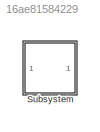
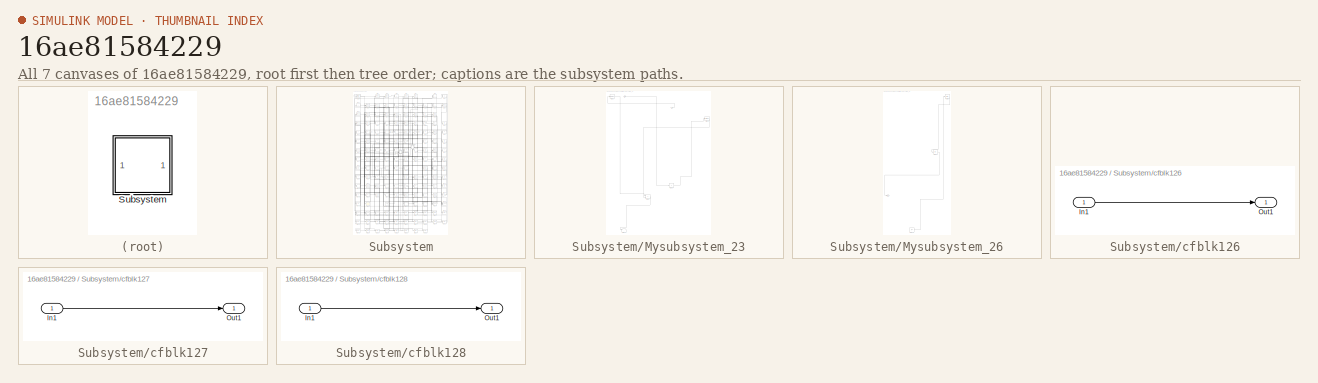
[diagram: thumbnail index - all 7 canvases of the model, root first then tree order]
MODEL slx_16ae81584229
KIND model
CONFIG AbsTol = auto
CONFIG EnableMultiTasking = off
CONFIG FixedStep = auto
CONFIG MaxStep = auto
CONFIG MinStep = auto
CONFIG RelTol = 1e-3
CONFIG SampleTimeConstraint = Unconstrained
CONFIG SolverName = VariableStepAuto
CONFIG StartTime = 0.0
CONFIG StopTime = 10.0
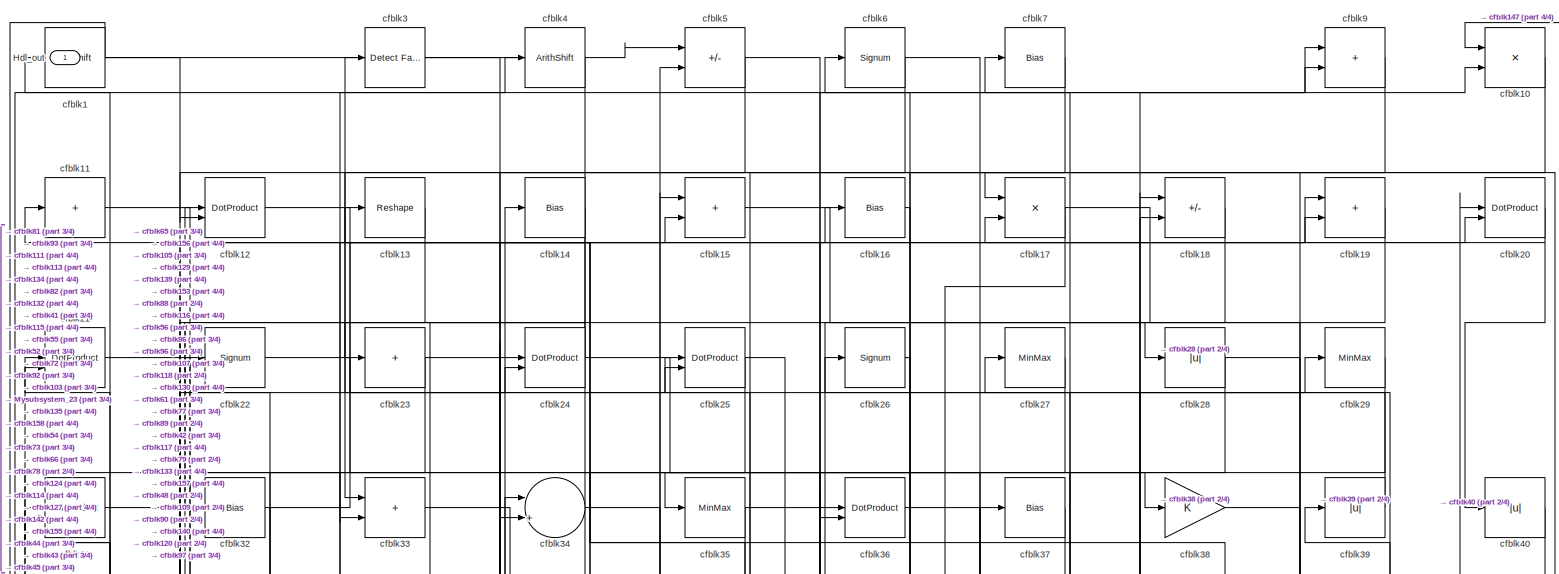
[diagram: Subsystem - part 1/4, full width, top band]
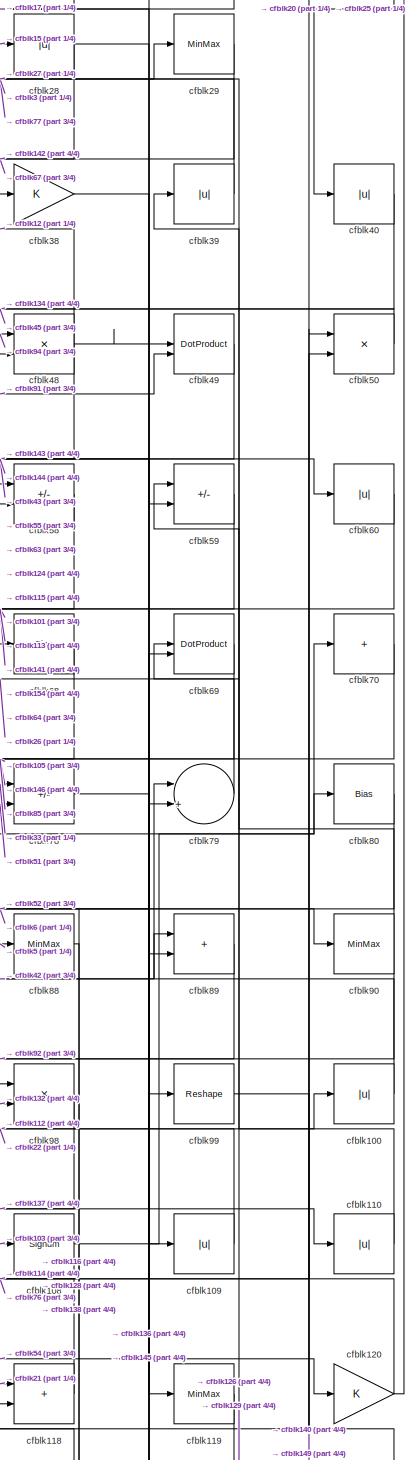
[diagram: Subsystem - part 2/4, middle right region]
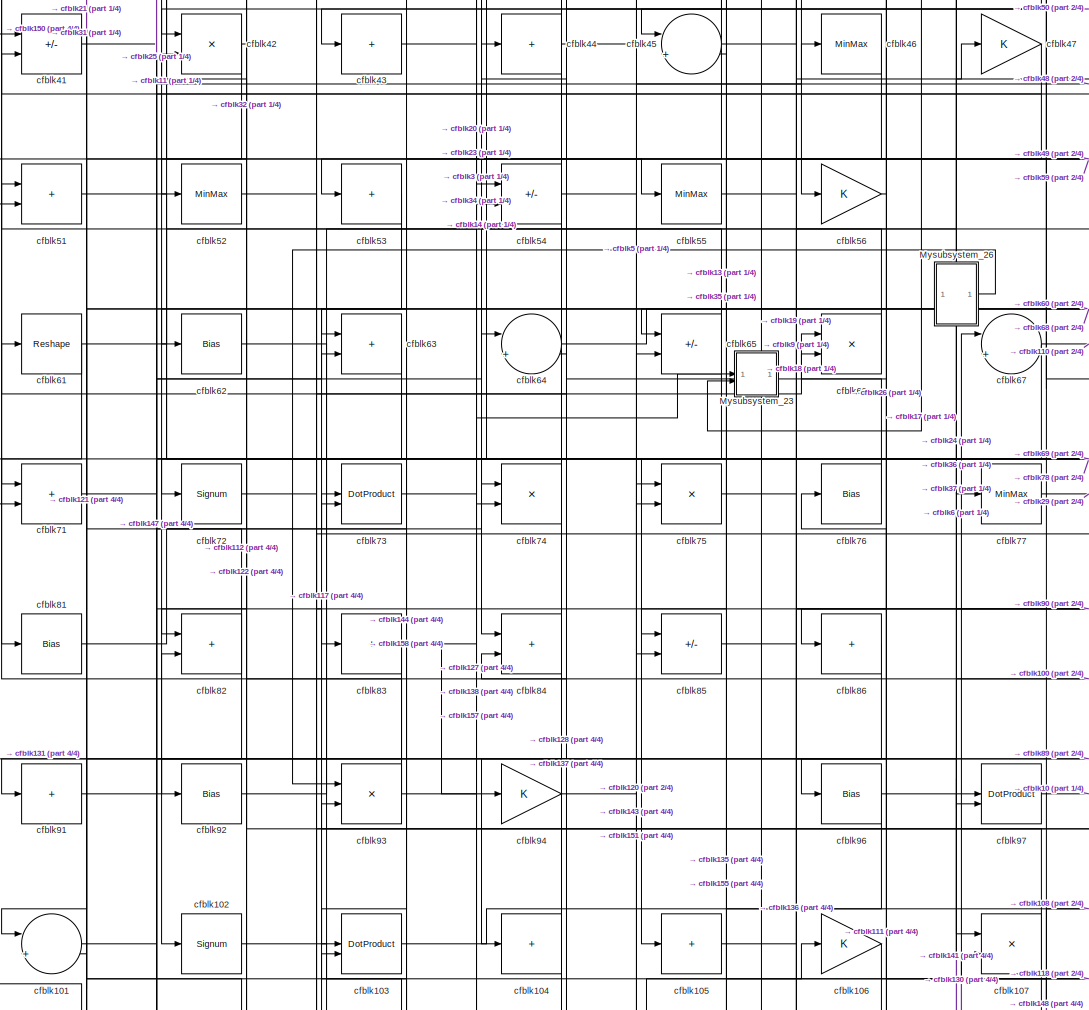
[diagram: Subsystem - part 3/4, central region]
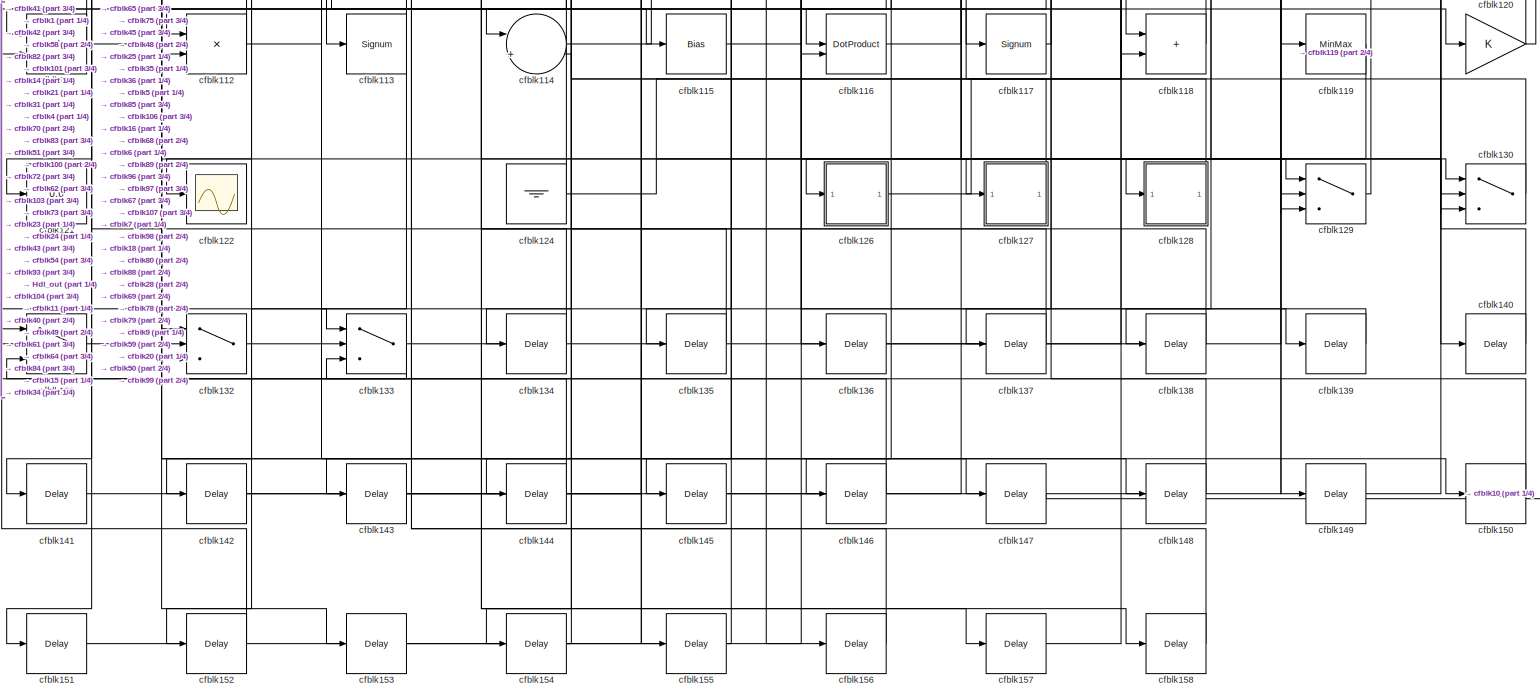
[diagram: Subsystem - part 4/4, full width, bottom band]
BLOCK [SubSystem] Subsystem
BLOCK [Outport] Subsystem/Hdl_out
  OutDataTypeStr = uint8
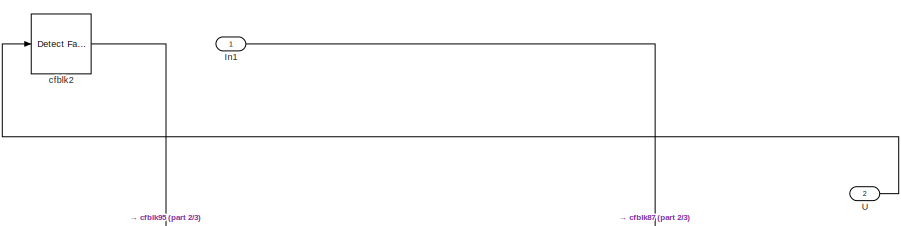
[diagram: Subsystem/Mysubsystem_23 - part 1/3, top center region]
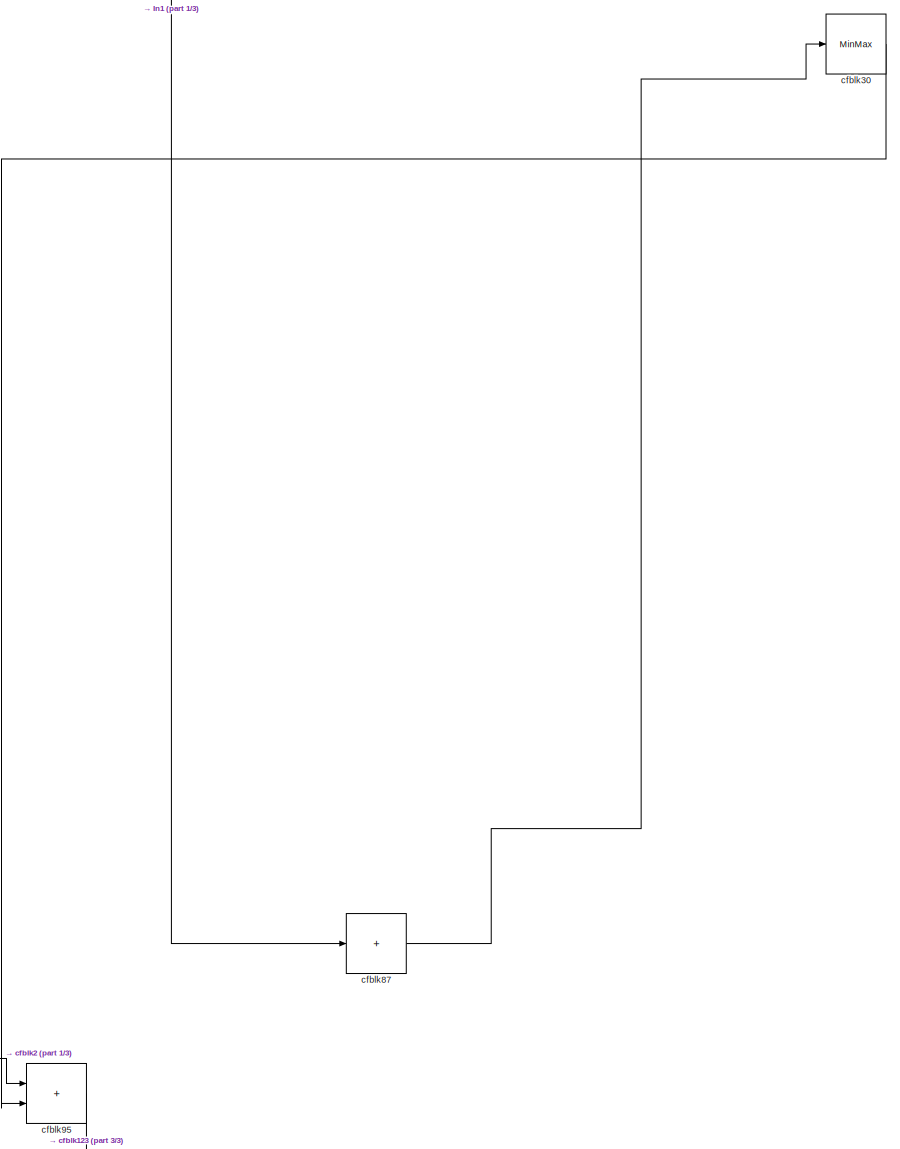
[diagram: Subsystem/Mysubsystem_23 - part 2/3, middle right region]
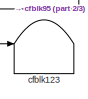
[diagram: Subsystem/Mysubsystem_23 - part 3/3, bottom left region]
BLOCK [SubSystem] Subsystem/Mysubsystem_23
  RTWFcnName = Mysubsystem_23
  RTWFcnNameOpts = User specified
  RTWFileNameOpts = Use function name
  RTWSystemCode = Reusable function
  TreatAsAtomicUnit = on
BLOCK [Inport] Subsystem/Mysubsystem_23/In1
BLOCK [Inport] Subsystem/Mysubsystem_23/U
  Port = 2
BLOCK [Terminator] Subsystem/Mysubsystem_23/cfblk123
BLOCK [Reference] Subsystem/Mysubsystem_23/cfblk2  REF=hdlsllib/Logic and Bit
Operations/Detect Fall
Nonpositive
  SourceBlock = hdlsllib/Logic and Bit\nOperations/Detect Fall\nNonpositive
  SourceType = Detect Fall Nonpositive
BLOCK [MinMax] Subsystem/Mysubsystem_23/cfblk30
BLOCK [Sum] Subsystem/Mysubsystem_23/cfblk87
  IconShape = rectangular
  Inputs = +
BLOCK [Sum] Subsystem/Mysubsystem_23/cfblk95
  IconShape = rectangular
BLOCK [SubSystem] Subsystem/Mysubsystem_26
  RTWFcnName = Mysubsystem_26
  RTWFcnNameOpts = User specified
  RTWFileNameOpts = Use function name
  RTWSystemCode = Reusable function
  TreatAsAtomicUnit = on
BLOCK [Outport] Subsystem/Mysubsystem_26/Out1
BLOCK [Ground] Subsystem/Mysubsystem_26/cfblk125
BLOCK [Abs] Subsystem/Mysubsystem_26/cfblk57
  SaturateOnIntegerOverflow = off
BLOCK [Bias] Subsystem/Mysubsystem_26/cfblk8
  Bias = 0.0
  SaturateOnIntegerOverflow = off
BLOCK [Reference] Subsystem/cfblk1  REF=hdlsllib/Logic and Bit
Operations/Bit Shift
  SourceBlock = hdlsllib/Logic and Bit\nOperations/Bit Shift
  SourceType = Bit Shift
BLOCK [Product] Subsystem/cfblk10
  Inputs = */
  OutDataTypeStr = uint8
  RndMeth = Zero
  SaturateOnIntegerOverflow = on
BLOCK [Abs] Subsystem/cfblk100
  OutDataTypeStr = uint8
  SaturateOnIntegerOverflow = off
BLOCK [Sum] Subsystem/cfblk101
  Inputs = |++
  OutDataTypeStr = uint8
BLOCK [Signum] Subsystem/cfblk102
BLOCK [DotProduct] Subsystem/cfblk103
  OutDataTypeStr = uint8
BLOCK [Sum] Subsystem/cfblk104
  IconShape = rectangular
  Inputs = +
  OutDataTypeStr = uint8
BLOCK [Sum] Subsystem/cfblk105
  IconShape = rectangular
  Inputs = +
  OutDataTypeStr = uint8
BLOCK [Gain] Subsystem/cfblk106
  OutDataTypeStr = uint8
BLOCK [Product] Subsystem/cfblk107
  Inputs = */
  OutDataTypeStr = uint8
  RndMeth = Zero
  SaturateOnIntegerOverflow = on
BLOCK [Signum] Subsystem/cfblk108
BLOCK [Abs] Subsystem/cfblk109
  OutDataTypeStr = uint8
  SaturateOnIntegerOverflow = off
BLOCK [Sum] Subsystem/cfblk11
  IconShape = rectangular
  Inputs = +
  OutDataTypeStr = uint8
BLOCK [Abs] Subsystem/cfblk110
  OutDataTypeStr = uint8
  SaturateOnIntegerOverflow = off
BLOCK [Sum] Subsystem/cfblk111
  IconShape = rectangular
  Inputs = +-
  OutDataTypeStr = uint8
BLOCK [Product] Subsystem/cfblk112
  Inputs = */
  OutDataTypeStr = uint8
  RndMeth = Zero
  SaturateOnIntegerOverflow = on
BLOCK [Signum] Subsystem/cfblk113
BLOCK [Sum] Subsystem/cfblk114
  Inputs = |++
  OutDataTypeStr = uint8
BLOCK [Bias] Subsystem/cfblk115
  Bias = 0.0
  SaturateOnIntegerOverflow = off
BLOCK [DotProduct] Subsystem/cfblk116
  OutDataTypeStr = uint8
BLOCK [Signum] Subsystem/cfblk117
BLOCK [Sum] Subsystem/cfblk118
  IconShape = rectangular
  OutDataTypeStr = uint8
BLOCK [MinMax] Subsystem/cfblk119
  OutDataTypeStr = uint8
BLOCK [DotProduct] Subsystem/cfblk12
  OutDataTypeStr = uint8
BLOCK [Gain] Subsystem/cfblk120
  OutDataTypeStr = uint8
BLOCK [Display] Subsystem/cfblk121
  Decimation = 1
BLOCK [Scope] Subsystem/cfblk122
  Floating = off
  NumInputPorts = 1
  ScopeSpecificationString = Simulink.scopes.TimeScopeBlockCfg('CurrentConfiguration', extmgr.ConfigurationSet(extmgr.Configuration('Core','General UI',true),extmgr.Configuration('Core','Source UI',true),extmgr.Configuration('Sources','WiredSimulink',true,'DataLoggingSaveFormat','Array','DataLoggingLimitDataPoints',true,'DataLoggingDecimation','1'),extmgr.Configuration('Visuals','Time Domain',true,'DisplayPropertyDefaults',st...<+829ch>
BLOCK [Ground] Subsystem/cfblk124
BLOCK [SubSystem] Subsystem/cfblk126
  LibrarySourceBlock = hdlsllib/Ports &\nSubsystems/Subsystem
BLOCK [Inport] Subsystem/cfblk126/In1
BLOCK [Outport] Subsystem/cfblk126/Out1
BLOCK [SubSystem] Subsystem/cfblk127
  LibrarySourceBlock = hdlsllib/Ports &\nSubsystems/Subsystem
BLOCK [Inport] Subsystem/cfblk127/In1
BLOCK [Outport] Subsystem/cfblk127/Out1
BLOCK [SubSystem] Subsystem/cfblk128
  LibrarySourceBlock = hdlsllib/Ports &\nSubsystems/Subsystem
BLOCK [Inport] Subsystem/cfblk128/In1
BLOCK [Outport] Subsystem/cfblk128/Out1
BLOCK [Switch] Subsystem/cfblk129
  InputSameDT = off
  OutDataTypeStr = uint8
  SaturateOnIntegerOverflow = off
BLOCK [Reshape] Subsystem/cfblk13
BLOCK [Switch] Subsystem/cfblk130
  InputSameDT = off
  OutDataTypeStr = uint8
  SaturateOnIntegerOverflow = off
BLOCK [Switch] Subsystem/cfblk131
  InputSameDT = off
  OutDataTypeStr = uint8
  SaturateOnIntegerOverflow = off
BLOCK [Switch] Subsystem/cfblk132
  InputSameDT = off
  OutDataTypeStr = uint8
  SaturateOnIntegerOverflow = off
BLOCK [Switch] Subsystem/cfblk133
  InputSameDT = off
  OutDataTypeStr = uint8
  SaturateOnIntegerOverflow = off
BLOCK [Delay] Subsystem/cfblk134
  InputPortMap = u0
  SampleTime = 1
BLOCK [Delay] Subsystem/cfblk135
  InputPortMap = u0
  SampleTime = 1
BLOCK [Delay] Subsystem/cfblk136
  InputPortMap = u0
  SampleTime = 1
BLOCK [Delay] Subsystem/cfblk137
  InputPortMap = u0
  SampleTime = 1
BLOCK [Delay] Subsystem/cfblk138
  InputPortMap = u0
  SampleTime = 1
BLOCK [Delay] Subsystem/cfblk139
  InputPortMap = u0
  SampleTime = 1
BLOCK [Bias] Subsystem/cfblk14
  Bias = 0.0
  SaturateOnIntegerOverflow = off
BLOCK [Delay] Subsystem/cfblk140
  InputPortMap = u0
  SampleTime = 1
BLOCK [Delay] Subsystem/cfblk141
  InputPortMap = u0
  SampleTime = 1
BLOCK [Delay] Subsystem/cfblk142
  InputPortMap = u0
  SampleTime = 1
BLOCK [Delay] Subsystem/cfblk143
  InputPortMap = u0
  SampleTime = 1
BLOCK [Delay] Subsystem/cfblk144
  InputPortMap = u0
  SampleTime = 1
BLOCK [Delay] Subsystem/cfblk145
  InputPortMap = u0
  SampleTime = 1
BLOCK [Delay] Subsystem/cfblk146
  InputPortMap = u0
  SampleTime = 1
BLOCK [Delay] Subsystem/cfblk147
  InputPortMap = u0
  SampleTime = 1
BLOCK [Delay] Subsystem/cfblk148
  InputPortMap = u0
  SampleTime = 1
BLOCK [Delay] Subsystem/cfblk149
  InputPortMap = u0
  SampleTime = 1
BLOCK [Sum] Subsystem/cfblk15
  IconShape = rectangular
  OutDataTypeStr = uint8
BLOCK [Delay] Subsystem/cfblk150
  InputPortMap = u0
  SampleTime = 1
BLOCK [Delay] Subsystem/cfblk151
  InputPortMap = u0
  SampleTime = 1
BLOCK [Delay] Subsystem/cfblk152
  InputPortMap = u0
  SampleTime = 1
BLOCK [Delay] Subsystem/cfblk153
  InputPortMap = u0
  SampleTime = 1
BLOCK [Delay] Subsystem/cfblk154
  InputPortMap = u0
  SampleTime = 1
BLOCK [Delay] Subsystem/cfblk155
  InputPortMap = u0
  SampleTime = 1
BLOCK [Delay] Subsystem/cfblk156
  InputPortMap = u0
  SampleTime = 1
BLOCK [Delay] Subsystem/cfblk157
  InputPortMap = u0
  SampleTime = 1
BLOCK [Delay] Subsystem/cfblk158
  InputPortMap = u0
  SampleTime = 1
BLOCK [Bias] Subsystem/cfblk16
  Bias = 0.0
  SaturateOnIntegerOverflow = off
BLOCK [Product] Subsystem/cfblk17
  Inputs = */
  OutDataTypeStr = uint8
  RndMeth = Zero
  SaturateOnIntegerOverflow = on
BLOCK [Sum] Subsystem/cfblk18
  IconShape = rectangular
  Inputs = +-
  OutDataTypeStr = uint8
BLOCK [Sum] Subsystem/cfblk19
  IconShape = rectangular
  OutDataTypeStr = uint8
BLOCK [DotProduct] Subsystem/cfblk20
  OutDataTypeStr = uint8
BLOCK [DotProduct] Subsystem/cfblk21
  OutDataTypeStr = uint8
BLOCK [Signum] Subsystem/cfblk22
BLOCK [Sum] Subsystem/cfblk23
  IconShape = rectangular
  Inputs = +
  OutDataTypeStr = uint8
BLOCK [DotProduct] Subsystem/cfblk24
  OutDataTypeStr = uint8
BLOCK [DotProduct] Subsystem/cfblk25
  OutDataTypeStr = uint8
BLOCK [Signum] Subsystem/cfblk26
BLOCK [MinMax] Subsystem/cfblk27
  OutDataTypeStr = uint8
BLOCK [Abs] Subsystem/cfblk28
  OutDataTypeStr = uint8
  SaturateOnIntegerOverflow = off
BLOCK [MinMax] Subsystem/cfblk29
  OutDataTypeStr = uint8
BLOCK [Reference] Subsystem/cfblk3  REF=hdlsllib/Logic and Bit
Operations/Detect Fall
Negative
  SourceBlock = hdlsllib/Logic and Bit\nOperations/Detect Fall\nNegative
  SourceType = Detect Fall Negative
BLOCK [DotProduct] Subsystem/cfblk31
  OutDataTypeStr = uint8
BLOCK [Bias] Subsystem/cfblk32
  Bias = 0.0
  SaturateOnIntegerOverflow = off
BLOCK [Sum] Subsystem/cfblk33
  IconShape = rectangular
  OutDataTypeStr = uint8
BLOCK [Sum] Subsystem/cfblk34
  Inputs = |++
  OutDataTypeStr = uint8
BLOCK [MinMax] Subsystem/cfblk35
  OutDataTypeStr = uint8
BLOCK [DotProduct] Subsystem/cfblk36
  OutDataTypeStr = uint8
BLOCK [Bias] Subsystem/cfblk37
  Bias = 0.0
  SaturateOnIntegerOverflow = off
BLOCK [Gain] Subsystem/cfblk38
  OutDataTypeStr = uint8
BLOCK [Abs] Subsystem/cfblk39
  OutDataTypeStr = uint8
  SaturateOnIntegerOverflow = off
BLOCK [ArithShift] Subsystem/cfblk4
  BitShiftNumber = 8
  InputPortMap = u0
BLOCK [Abs] Subsystem/cfblk40
  OutDataTypeStr = uint8
  SaturateOnIntegerOverflow = off
BLOCK [Sum] Subsystem/cfblk41
  IconShape = rectangular
  Inputs = +-
  OutDataTypeStr = uint8
BLOCK [Product] Subsystem/cfblk42
  Inputs = */
  OutDataTypeStr = uint8
  RndMeth = Zero
  SaturateOnIntegerOverflow = on
BLOCK [Sum] Subsystem/cfblk43
  IconShape = rectangular
  Inputs = +
  OutDataTypeStr = uint8
BLOCK [Sum] Subsystem/cfblk44
  IconShape = rectangular
  Inputs = +
  OutDataTypeStr = uint8
BLOCK [Sum] Subsystem/cfblk45
  Inputs = |++
  OutDataTypeStr = uint8
BLOCK [MinMax] Subsystem/cfblk46
  OutDataTypeStr = uint8
BLOCK [Gain] Subsystem/cfblk47
  OutDataTypeStr = uint8
BLOCK [Product] Subsystem/cfblk48
  Inputs = */
  OutDataTypeStr = uint8
  RndMeth = Zero
  SaturateOnIntegerOverflow = on
BLOCK [DotProduct] Subsystem/cfblk49
  OutDataTypeStr = uint8
BLOCK [Sum] Subsystem/cfblk5
  IconShape = rectangular
  Inputs = +-
  OutDataTypeStr = uint8
BLOCK [Product] Subsystem/cfblk50
  Inputs = */
  OutDataTypeStr = uint8
  RndMeth = Zero
  SaturateOnIntegerOverflow = on
BLOCK [Sum] Subsystem/cfblk51
  IconShape = rectangular
  OutDataTypeStr = uint8
BLOCK [MinMax] Subsystem/cfblk52
  OutDataTypeStr = uint8
BLOCK [Sum] Subsystem/cfblk53
  IconShape = rectangular
  Inputs = +
  OutDataTypeStr = uint8
BLOCK [Sum] Subsystem/cfblk54
  IconShape = rectangular
  Inputs = +-
  OutDataTypeStr = uint8
BLOCK [MinMax] Subsystem/cfblk55
  OutDataTypeStr = uint8
BLOCK [Gain] Subsystem/cfblk56
  OutDataTypeStr = uint8
BLOCK [Sum] Subsystem/cfblk58
  IconShape = rectangular
  Inputs = +-
  OutDataTypeStr = uint8
BLOCK [Sum] Subsystem/cfblk59
  IconShape = rectangular
  Inputs = +-
  OutDataTypeStr = uint8
BLOCK [Signum] Subsystem/cfblk6
BLOCK [Abs] Subsystem/cfblk60
  OutDataTypeStr = uint8
  SaturateOnIntegerOverflow = off
BLOCK [Reshape] Subsystem/cfblk61
BLOCK [Bias] Subsystem/cfblk62
  Bias = 0.0
  SaturateOnIntegerOverflow = off
BLOCK [Sum] Subsystem/cfblk63
  IconShape = rectangular
  OutDataTypeStr = uint8
BLOCK [Sum] Subsystem/cfblk64
  Inputs = |++
  OutDataTypeStr = uint8
BLOCK [Sum] Subsystem/cfblk65
  IconShape = rectangular
  Inputs = +-
  OutDataTypeStr = uint8
BLOCK [Product] Subsystem/cfblk66
  Inputs = */
  OutDataTypeStr = uint8
  RndMeth = Zero
  SaturateOnIntegerOverflow = on
BLOCK [Sum] Subsystem/cfblk67
  Inputs = |++
  OutDataTypeStr = uint8
BLOCK [Bias] Subsystem/cfblk68
  Bias = 0.0
  SaturateOnIntegerOverflow = off
BLOCK [DotProduct] Subsystem/cfblk69
  OutDataTypeStr = uint8
BLOCK [Bias] Subsystem/cfblk7
  Bias = 0.0
  SaturateOnIntegerOverflow = off
BLOCK [Sum] Subsystem/cfblk70
  IconShape = rectangular
  Inputs = +
  OutDataTypeStr = uint8
BLOCK [Sum] Subsystem/cfblk71
  IconShape = rectangular
  OutDataTypeStr = uint8
BLOCK [Signum] Subsystem/cfblk72
BLOCK [DotProduct] Subsystem/cfblk73
  OutDataTypeStr = uint8
BLOCK [Product] Subsystem/cfblk74
  Inputs = */
  OutDataTypeStr = uint8
  RndMeth = Zero
  SaturateOnIntegerOverflow = on
BLOCK [Product] Subsystem/cfblk75
  Inputs = */
  OutDataTypeStr = uint8
  RndMeth = Zero
  SaturateOnIntegerOverflow = on
BLOCK [Bias] Subsystem/cfblk76
  Bias = 0.0
  SaturateOnIntegerOverflow = off
BLOCK [MinMax] Subsystem/cfblk77
  OutDataTypeStr = uint8
BLOCK [Sum] Subsystem/cfblk78
  IconShape = rectangular
  Inputs = +-
  OutDataTypeStr = uint8
BLOCK [Sum] Subsystem/cfblk79
  Inputs = |++
  OutDataTypeStr = uint8
BLOCK [Bias] Subsystem/cfblk80
  Bias = 0.0
  SaturateOnIntegerOverflow = off
BLOCK [Bias] Subsystem/cfblk81
  Bias = 0.0
  SaturateOnIntegerOverflow = off
BLOCK [Sum] Subsystem/cfblk82
  IconShape = rectangular
  OutDataTypeStr = uint8
BLOCK [Sum] Subsystem/cfblk83
  IconShape = rectangular
  Inputs = +
  OutDataTypeStr = uint8
BLOCK [Sum] Subsystem/cfblk84
  IconShape = rectangular
  OutDataTypeStr = uint8
BLOCK [Sum] Subsystem/cfblk85
  IconShape = rectangular
  Inputs = +-
  OutDataTypeStr = uint8
BLOCK [Sum] Subsystem/cfblk86
  IconShape = rectangular
  Inputs = +
  OutDataTypeStr = uint8
BLOCK [MinMax] Subsystem/cfblk88
  OutDataTypeStr = uint8
BLOCK [Sum] Subsystem/cfblk89
  IconShape = rectangular
  OutDataTypeStr = uint8
BLOCK [Sum] Subsystem/cfblk9
  IconShape = rectangular
  OutDataTypeStr = uint8
BLOCK [MinMax] Subsystem/cfblk90
  OutDataTypeStr = uint8
BLOCK [Sum] Subsystem/cfblk91
  IconShape = rectangular
  Inputs = +
  OutDataTypeStr = uint8
BLOCK [Bias] Subsystem/cfblk92
  Bias = 0.0
  SaturateOnIntegerOverflow = off
BLOCK [Product] Subsystem/cfblk93
  Inputs = */
  OutDataTypeStr = uint8
  RndMeth = Zero
  SaturateOnIntegerOverflow = on
BLOCK [Gain] Subsystem/cfblk94
  OutDataTypeStr = uint8
BLOCK [Bias] Subsystem/cfblk96
  Bias = 0.0
  SaturateOnIntegerOverflow = off
BLOCK [DotProduct] Subsystem/cfblk97
  OutDataTypeStr = uint8
BLOCK [Product] Subsystem/cfblk98
  Inputs = */
  OutDataTypeStr = uint8
  RndMeth = Zero
  SaturateOnIntegerOverflow = on
BLOCK [Reshape] Subsystem/cfblk99
LINE Subsystem/Mysubsystem_23/In1:1 -> Subsystem/Mysubsystem_23/cfblk87:1
LINE Subsystem/Mysubsystem_23/U:1 -> Subsystem/Mysubsystem_23/cfblk2:1
LINE Subsystem/Mysubsystem_23/cfblk2:1 -> Subsystem/Mysubsystem_23/cfblk95:1
LINE Subsystem/Mysubsystem_23/cfblk30:1 -> Subsystem/Mysubsystem_23/cfblk95:2
LINE Subsystem/Mysubsystem_23/cfblk87:1 -> Subsystem/Mysubsystem_23/cfblk30:1
LINE Subsystem/Mysubsystem_23/cfblk95:1 -> Subsystem/Mysubsystem_23/cfblk123:1
LINE Subsystem/Mysubsystem_26/cfblk125:1 -> Subsystem/Mysubsystem_26/cfblk8:1
LINE Subsystem/Mysubsystem_26/cfblk57:1 -> Subsystem/Mysubsystem_26/Out1:1
LINE Subsystem/Mysubsystem_26/cfblk8:1 -> Subsystem/Mysubsystem_26/cfblk57:1
LINE Subsystem/Mysubsystem_26:1 -> Subsystem/cfblk93:1
NET Subsystem/cfblk100:1 -> Subsystem/cfblk42:2, Subsystem/cfblk79:1
NET Subsystem/cfblk101:1 -> Subsystem/cfblk148:1, Subsystem/cfblk46:1
LINE Subsystem/cfblk102:1 -> Subsystem/cfblk106:1
LINE Subsystem/cfblk103:1 -> Subsystem/cfblk108:1
LINE Subsystem/cfblk104:1 -> Subsystem/cfblk151:1
NET Subsystem/cfblk105:1 -> Subsystem/cfblk47:1, Subsystem/cfblk9:2
LINE Subsystem/cfblk106:1 -> Subsystem/cfblk111:2
NET Subsystem/cfblk107:1 -> Subsystem/cfblk112:1, Subsystem/cfblk66:2, Subsystem/cfblk93:2
LINE Subsystem/cfblk108:1 -> Subsystem/cfblk70:1
LINE Subsystem/cfblk109:1 -> Subsystem/cfblk22:1
LINE Subsystem/cfblk10:1 -> Subsystem/cfblk65:1
NET Subsystem/cfblk110:1 -> Subsystem/cfblk39:1, Subsystem/cfblk69:1
NET Subsystem/cfblk111:1 -> Subsystem/cfblk15:2, Subsystem/cfblk4:1
NET Subsystem/cfblk112:1 -> Subsystem/cfblk100:1, Subsystem/cfblk51:1
NET Subsystem/cfblk113:1 -> Subsystem/cfblk152:1, Subsystem/cfblk31:1
LINE Subsystem/cfblk114:1 -> Subsystem/cfblk50:2
LINE Subsystem/cfblk115:1 -> Subsystem/cfblk58:2
NET Subsystem/cfblk116:1 -> Subsystem/cfblk48:2, Subsystem/cfblk89:1
LINE Subsystem/cfblk117:1 -> Subsystem/cfblk7:1
LINE Subsystem/cfblk118:1 -> Subsystem/cfblk76:1
LINE Subsystem/cfblk119:1 -> Subsystem/cfblk126:1
LINE Subsystem/cfblk11:1 -> Subsystem/cfblk55:1
NET Subsystem/cfblk120:1 -> Subsystem/cfblk17:1, Subsystem/cfblk25:2
NET Subsystem/cfblk124:1 -> Subsystem/Hdl_out:1, Subsystem/cfblk129:2, Subsystem/cfblk58:1
LINE Subsystem/cfblk126/In1:1 -> Subsystem/cfblk126/Out1:1
LINE Subsystem/cfblk126:1 -> Subsystem/cfblk98:1
LINE Subsystem/cfblk127/In1:1 -> Subsystem/cfblk127/Out1:1
LINE Subsystem/cfblk127:1 -> Subsystem/cfblk11:1
LINE Subsystem/cfblk128/In1:1 -> Subsystem/cfblk128/Out1:1
NET Subsystem/cfblk128:1 -> Subsystem/cfblk61:1, Subsystem/cfblk64:2
LINE Subsystem/cfblk129:1 -> Subsystem/cfblk59:1
LINE Subsystem/cfblk12:1 -> Subsystem/cfblk38:1
LINE Subsystem/cfblk130:1 -> Subsystem/cfblk67:1
LINE Subsystem/cfblk131:1 -> Subsystem/cfblk73:1
LINE Subsystem/cfblk132:1 -> Subsystem/cfblk80:1
NET Subsystem/cfblk133:1 -> Subsystem/cfblk131:3, Subsystem/cfblk18:1
LINE Subsystem/cfblk134:1 -> Subsystem/cfblk1:1
LINE Subsystem/cfblk135:1 -> Subsystem/cfblk24:1
LINE Subsystem/cfblk136:1 -> Subsystem/cfblk69:2
LINE Subsystem/cfblk137:1 -> Subsystem/cfblk84:2
LINE Subsystem/cfblk138:1 -> Subsystem/cfblk54:1
LINE Subsystem/cfblk139:1 -> Subsystem/cfblk133:2
LINE Subsystem/cfblk13:1 -> Subsystem/cfblk72:1
LINE Subsystem/cfblk140:1 -> Subsystem/cfblk20:1
LINE Subsystem/cfblk141:1 -> Subsystem/cfblk97:1
LINE Subsystem/cfblk142:1 -> Subsystem/cfblk15:1
LINE Subsystem/cfblk143:1 -> Subsystem/cfblk65:2
LINE Subsystem/cfblk144:1 -> Subsystem/cfblk103:2
LINE Subsystem/cfblk145:1 -> Subsystem/cfblk79:2
LINE Subsystem/cfblk146:1 -> Subsystem/cfblk132:1
LINE Subsystem/cfblk147:1 -> Subsystem/cfblk10:1
LINE Subsystem/cfblk148:1 -> Subsystem/cfblk107:2
LINE Subsystem/cfblk149:1 -> Subsystem/cfblk50:1
NET Subsystem/cfblk14:1 -> Subsystem/cfblk132:3, Subsystem/cfblk32:1
LINE Subsystem/cfblk150:1 -> Subsystem/cfblk41:1
LINE Subsystem/cfblk151:1 -> Subsystem/cfblk75:1
LINE Subsystem/cfblk152:1 -> Subsystem/cfblk131:1
LINE Subsystem/cfblk153:1 -> Subsystem/cfblk36:1
LINE Subsystem/cfblk154:1 -> Subsystem/cfblk114:2
LINE Subsystem/cfblk155:1 -> Subsystem/cfblk45:2
LINE Subsystem/cfblk156:1 -> Subsystem/cfblk133:3
LINE Subsystem/cfblk157:1 -> Subsystem/cfblk18:2
LINE Subsystem/cfblk158:1 -> Subsystem/cfblk73:2
LINE Subsystem/cfblk15:1 -> Subsystem/cfblk28:1
LINE Subsystem/cfblk16:1 -> Subsystem/cfblk116:1
NET Subsystem/cfblk17:1 -> Subsystem/Mysubsystem_23:2, Subsystem/cfblk109:1
LINE Subsystem/cfblk18:1 -> Subsystem/cfblk56:1
LINE Subsystem/cfblk19:1 -> Subsystem/cfblk103:1
NET Subsystem/cfblk1:1 -> Subsystem/cfblk130:1, Subsystem/cfblk133:1, Subsystem/cfblk33:2
NET Subsystem/cfblk20:1 -> Subsystem/cfblk17:2, Subsystem/cfblk40:1
NET Subsystem/cfblk21:1 -> Subsystem/cfblk115:1, Subsystem/cfblk118:1
LINE Subsystem/cfblk22:1 -> Subsystem/cfblk24:2
NET Subsystem/cfblk23:1 -> Subsystem/cfblk158:1, Subsystem/cfblk81:1
NET Subsystem/cfblk24:1 -> Subsystem/cfblk23:1, Subsystem/cfblk36:2, Subsystem/cfblk77:1
NET Subsystem/cfblk25:1 -> Subsystem/cfblk114:1, Subsystem/cfblk156:1
LINE Subsystem/cfblk26:1 -> Subsystem/cfblk96:1
LINE Subsystem/cfblk27:1 -> Subsystem/cfblk35:1
NET Subsystem/cfblk28:1 -> Subsystem/cfblk119:1, Subsystem/cfblk142:1
LINE Subsystem/cfblk29:1 -> Subsystem/cfblk67:2
LINE Subsystem/cfblk31:1 -> Subsystem/cfblk153:1
NET Subsystem/cfblk32:1 -> Subsystem/cfblk16:1, Subsystem/cfblk52:1
LINE Subsystem/cfblk33:1 -> Subsystem/cfblk78:1
LINE Subsystem/cfblk34:1 -> Subsystem/cfblk155:1
NET Subsystem/cfblk35:1 -> Subsystem/cfblk129:1, Subsystem/cfblk43:1
LINE Subsystem/cfblk36:1 -> Subsystem/cfblk107:1
LINE Subsystem/cfblk37:1 -> Subsystem/cfblk42:1
LINE Subsystem/cfblk38:1 -> Subsystem/cfblk99:1
LINE Subsystem/cfblk39:1 -> Subsystem/cfblk3:1
LINE Subsystem/cfblk3:1 -> Subsystem/Mysubsystem_23:1
LINE Subsystem/cfblk40:1 -> Subsystem/cfblk134:1
LINE Subsystem/cfblk41:1 -> Subsystem/cfblk25:1
NET Subsystem/cfblk42:1 -> Subsystem/cfblk111:1, Subsystem/cfblk62:1
NET Subsystem/cfblk43:1 -> Subsystem/cfblk127:1, Subsystem/cfblk59:2
LINE Subsystem/cfblk44:1 -> Subsystem/cfblk5:2
NET Subsystem/cfblk45:1 -> Subsystem/cfblk13:1, Subsystem/cfblk19:1, Subsystem/cfblk51:2
LINE Subsystem/cfblk46:1 -> Subsystem/cfblk53:1
NET Subsystem/cfblk47:1 -> Subsystem/cfblk41:2, Subsystem/cfblk85:1
NET Subsystem/cfblk48:1 -> Subsystem/cfblk12:1, Subsystem/cfblk145:1, Subsystem/cfblk49:1
NET Subsystem/cfblk49:1 -> Subsystem/cfblk143:1, Subsystem/cfblk144:1, Subsystem/cfblk63:1
LINE Subsystem/cfblk4:1 -> Subsystem/cfblk5:1
LINE Subsystem/cfblk50:1 -> Subsystem/cfblk45:1
NET Subsystem/cfblk51:1 -> Subsystem/cfblk74:1, Subsystem/cfblk78:2
LINE Subsystem/cfblk52:1 -> Subsystem/cfblk90:1
LINE Subsystem/cfblk53:1 -> Subsystem/cfblk82:1
NET Subsystem/cfblk54:1 -> Subsystem/cfblk120:1, Subsystem/cfblk75:2
LINE Subsystem/cfblk55:1 -> Subsystem/cfblk60:1
LINE Subsystem/cfblk56:1 -> Subsystem/cfblk6:1
LINE Subsystem/cfblk58:1 -> Subsystem/cfblk141:1
NET Subsystem/cfblk59:1 -> Subsystem/cfblk113:1, Subsystem/cfblk154:1
NET Subsystem/cfblk5:1 -> Subsystem/cfblk12:2, Subsystem/cfblk139:1, Subsystem/cfblk88:1
LINE Subsystem/cfblk60:1 -> Subsystem/cfblk101:1
NET Subsystem/cfblk61:1 -> Subsystem/cfblk101:2, Subsystem/cfblk147:1, Subsystem/cfblk37:1, Subsystem/cfblk71:2
LINE Subsystem/cfblk62:1 -> Subsystem/cfblk117:1
LINE Subsystem/cfblk63:1 -> Subsystem/cfblk102:1
LINE Subsystem/cfblk64:1 -> Subsystem/cfblk68:1
NET Subsystem/cfblk65:1 -> Subsystem/cfblk31:2, Subsystem/cfblk84:1
LINE Subsystem/cfblk66:1 -> Subsystem/cfblk14:1
NET Subsystem/cfblk67:1 -> Subsystem/cfblk110:1, Subsystem/cfblk122:1
LINE Subsystem/cfblk68:1 -> Subsystem/cfblk146:1
NET Subsystem/cfblk69:1 -> Subsystem/cfblk105:1, Subsystem/cfblk85:2
NET Subsystem/cfblk6:1 -> Subsystem/cfblk118:2, Subsystem/cfblk130:2, Subsystem/cfblk54:2, Subsystem/cfblk89:2
NET Subsystem/cfblk70:1 -> Subsystem/cfblk132:2, Subsystem/cfblk98:2
LINE Subsystem/cfblk71:1 -> Subsystem/cfblk64:1
NET Subsystem/cfblk72:1 -> Subsystem/cfblk150:1, Subsystem/cfblk66:1, Subsystem/cfblk9:1
LINE Subsystem/cfblk73:1 -> Subsystem/cfblk20:2
LINE Subsystem/cfblk74:1 -> Subsystem/cfblk71:1
LINE Subsystem/cfblk75:1 -> Subsystem/cfblk97:2
LINE Subsystem/cfblk76:1 -> Subsystem/cfblk44:1
LINE Subsystem/cfblk77:1 -> Subsystem/cfblk29:1
LINE Subsystem/cfblk78:1 -> Subsystem/cfblk149:1
LINE Subsystem/cfblk79:1 -> Subsystem/cfblk26:1
LINE Subsystem/cfblk7:1 -> Subsystem/cfblk33:1
NET Subsystem/cfblk80:1 -> Subsystem/cfblk116:2, Subsystem/cfblk128:1
NET Subsystem/cfblk81:1 -> Subsystem/cfblk34:1, Subsystem/cfblk83:1
NET Subsystem/cfblk82:1 -> Subsystem/cfblk121:1, Subsystem/cfblk21:2
NET Subsystem/cfblk83:1 -> Subsystem/cfblk112:2, Subsystem/cfblk74:2, Subsystem/cfblk94:1
LINE Subsystem/cfblk84:1 -> Subsystem/cfblk131:2
LINE Subsystem/cfblk85:1 -> Subsystem/cfblk136:1
LINE Subsystem/cfblk86:1 -> Subsystem/cfblk104:1
LINE Subsystem/cfblk88:1 -> Subsystem/cfblk138:1
LINE Subsystem/cfblk89:1 -> Subsystem/cfblk91:1
NET Subsystem/cfblk90:1 -> Subsystem/cfblk27:1, Subsystem/cfblk92:1
NET Subsystem/cfblk91:1 -> Subsystem/cfblk49:2, Subsystem/cfblk63:2, Subsystem/cfblk82:2
NET Subsystem/cfblk92:1 -> Subsystem/cfblk19:2, Subsystem/cfblk34:2
NET Subsystem/cfblk93:1 -> Subsystem/cfblk157:1, Subsystem/cfblk21:1
LINE Subsystem/cfblk94:1 -> Subsystem/cfblk48:1
NET Subsystem/cfblk96:1 -> Subsystem/cfblk130:3, Subsystem/cfblk135:1
LINE Subsystem/cfblk97:1 -> Subsystem/cfblk10:2
LINE Subsystem/cfblk98:1 -> Subsystem/cfblk137:1
LINE Subsystem/cfblk99:1 -> Subsystem/cfblk140:1
NET Subsystem/cfblk9:1 -> Subsystem/cfblk129:3, Subsystem/cfblk86:1
note: NET lines group one-source signal fan-out (src -> all destinations, sorted); 1:1 wires keep LINE
